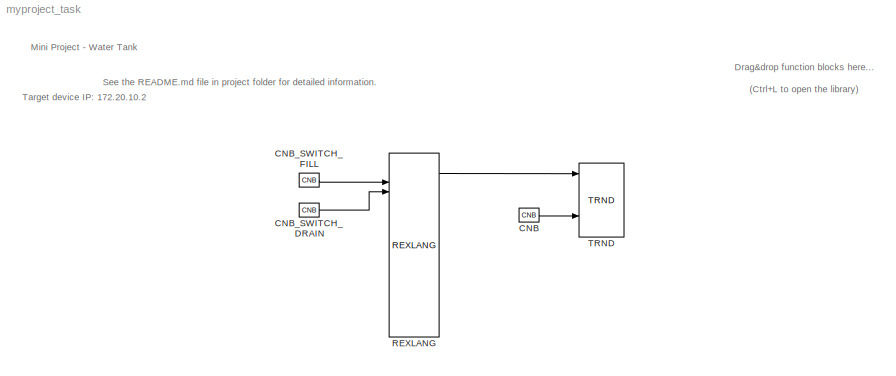
MODEL myproject_task
KIND model
BLOCK [Reference] CNB  REF=mathlib/CNB
  Ports = [0, 1, 0, 0, 0]
  SourceBlock = mathlib/CNB
  YCN = on
BLOCK [Reference] CNB_SWITCH_DRAIN  REF=mathlib/CNB
  Ports = [0, 1, 0, 0, 0]
  SourceBlock = mathlib/CNB
  YCN = off
BLOCK [Reference] CNB_SWITCH_FILL  REF=mathlib/CNB
  Ports = [0, 1, 0, 0, 0]
  SourceBlock = mathlib/CNB
  YCN = on
BLOCK [Reference] REXLANG  REF=speclib/REXLANG
  Ports = [18, 17, 0, 0, 0]
  SourceBlock = speclib/REXLANG
  debug = 3: Full check
  srcname = srcfile.st
  srctype = 2: STL
  stack = 0
  strs = 0
BLOCK [Reference] TRND  REF=arclib/TRND
  Ports = [6, 5, 0, 0, 0]
  SourceBlock = arclib/TRND
  Title = Trend Title
  afac = 0
  arc = 0
  btype = 8: Double (F64)
  id = 0
  l = 1000
  n = 4
  pfac = 1
  ptype1 = 1: Store
  ptype2 = 1: Store
  ptype3 = 1: Store
  ptype4 = 1: Store
  timesrc = 1: CORETIMER
LINE CNB:1 -> TRND:5
LINE CNB_SWITCH_DRAIN:1 -> REXLANG:4
LINE CNB_SWITCH_FILL:1 -> REXLANG:3
LINE REXLANG:2 -> TRND:1
